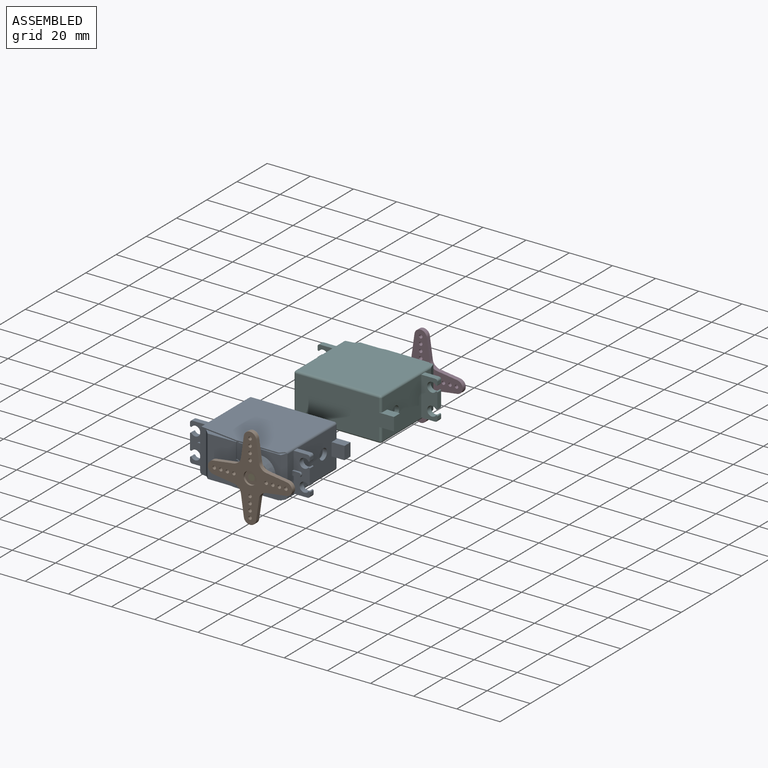
[diagram: assembled view]
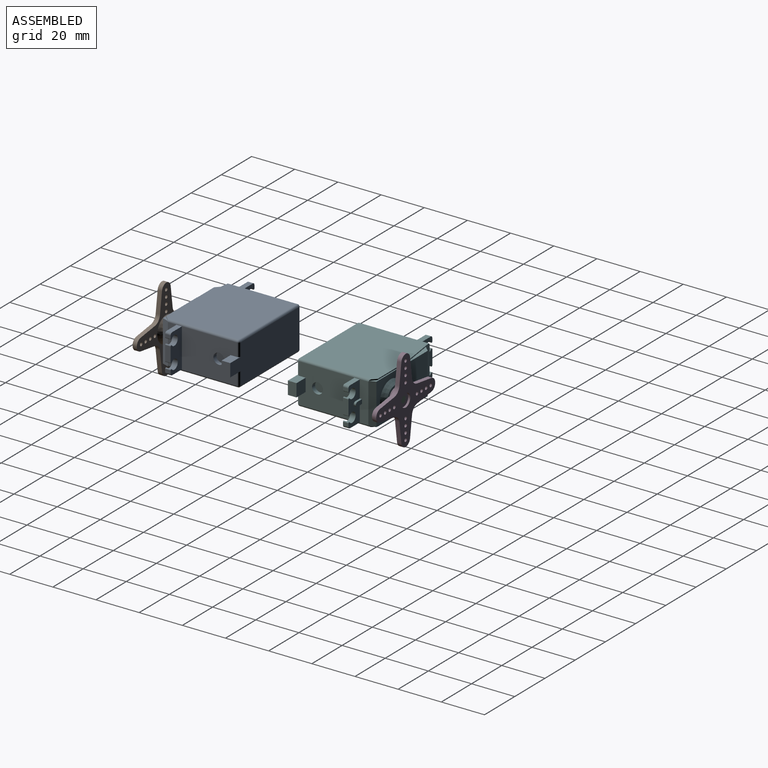
[diagram: assembled view, second angle]
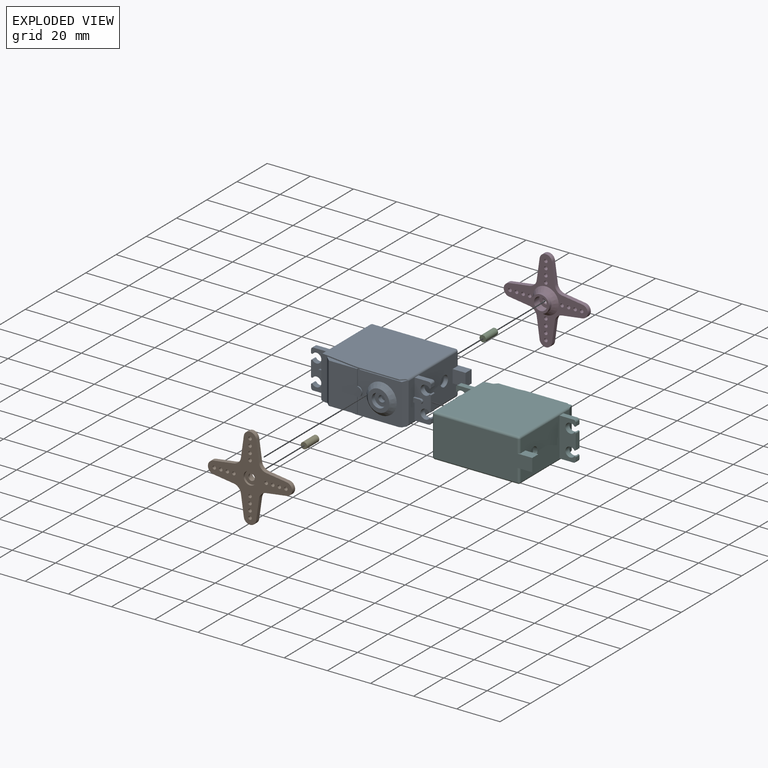
[diagram: exploded view]
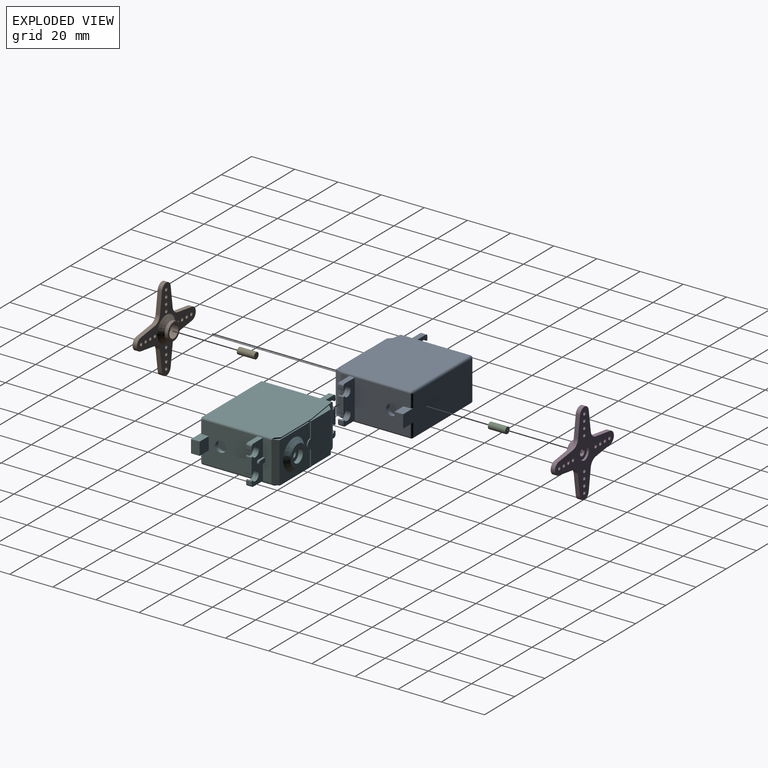
[diagram: exploded view, second angle]
ASSEMBLY  parts=6 mates=4
PART A: 88 faces, bbox 55.5x20x38.1 mm
  f0: plane 18x4mm, normal (-1,0,0), area 70mm2, adj f7,f10,f39,f40,f42,f74,f77
  f1: plane 25.6x18mm, normal (1,0,0), area 423.2mm2, adj f20,f65,f67,f68,f69,f71,f72,f80
  f2: plane 7.34x0.5mm, normal (1,0,0), area 3.7mm2, adj f3,f50,f52,f58
  f3: plane 20x19.9mm, normal (0,0,1), area 41mm2, adj f2,f4,f6,f7,f8,f11,f47,f49
  f4: plane 6.5x0.5mm, normal (-1,0,0), area 3.3mm2, adj f3,f5,f56,f57
  f5: plane 19.8x19mm, normal (0,0,1), area 212.8mm2, adj f4,f53,f54,f55,f56,f57,f62
  f6: plane 2.37x2.37mm, normal (0.71,0,0.71), area 1.5mm2, adj f3,f8,f56,f71
  f7: plane 20x18.1mm, normal (-0.14,0,0.99), area 75.4mm2, adj f0,f3,f8,f11,f48,f51,f52,f74
  f8: plane 38.5x34.6mm, normal (0,-1,0), area 1310.8mm2, adj f3,f6,f7,f71,f74,f75
  f9: plane 18x4mm, normal (1,0,0), area 70mm2, adj f15,f44,f45,f46,f54,f71,f80
  f10: plane 18x7.5mm, normal (0,0,1), area 93.3mm2, adj f0,f16,f17,f18,f23,f24,f25,f26
  f11: plane 38.5x34.6mm, normal (0,1,0), area 1310.8mm2, adj f3,f7,f47,f77,f80,f81
  f12: plane 6.8x2.5mm, normal (1,0,0), area 17mm2, adj f15,f20,f30,f34
  f13: plane 2.5x1.4mm, normal (1,0,0), area 3.5mm2, adj f15,f20,f32,f87
  f14: plane 2.5x1.4mm, normal (1,0,0), area 3.5mm2, adj f15,f20,f31,f86
  f15: plane 18x7.5mm, normal (0,0,1), area 93.3mm2, adj f9,f12,f13,f14,f29,f30,f31,f32
  f16: plane 2.5x1.4mm, normal (-1,0,0), area 3.5mm2, adj f10,f22,f25,f85
  f17: plane 2.5x1.4mm, normal (-1,0,0), area 3.5mm2, adj f10,f22,f26,f84
  f18: plane 6.8x2.5mm, normal (-1,0,0), area 17mm2, adj f10,f22,f23,f28
  f19: plane 45.5x18mm, normal (0,0,-1), area 735mm2, adj f67,f69,f70,f72,f75,f78,f81,f83
  f20: plane 18x7.5mm, normal (0,0,-1), area 100.9mm2, adj f1,f12,f13,f14,f29,f30,f31,f32
  f21: plane 25.6x18mm, normal (-1,0,0), area 460.8mm2, adj f22,f74,f77,f78
  f22: plane 18x7.5mm, normal (0,0,-1), area 100.9mm2, adj f16,f17,f18,f21,f23,f24,f25,f26
  f23: cylinder r=0.39mm len=2.5mm, axis (0,0,1), area 2.5mm2, adj f10,f18,f22,f24
  f24: cylinder r=2.25mm len=4.5mm, axis (0,0,1), area 28mm2, adj f10,f22,f23,f25
  f25: cylinder r=0.39mm len=2.5mm, axis (0,0,1), area 2.5mm2, adj f10,f16,f22,f24
  f26: cylinder r=0.39mm len=2.5mm, axis (0,0,1), area 2.5mm2, adj f10,f17,f22,f27
  f27: cylinder r=2.25mm len=4.5mm, axis (0,0,1), area 28mm2, adj f10,f22,f26,f28
  f28: cylinder r=0.39mm len=2.5mm, axis (0,0,1), area 2.5mm2, adj f10,f18,f22,f27
  f29: cylinder r=2.25mm len=4.5mm, axis (0,0,1), area 28mm2, adj f15,f20,f30,f31
  f30: cylinder r=0.39mm len=2.5mm, axis (0,0,1), area 2.5mm2, adj f12,f15,f20,f29
  f31: cylinder r=0.39mm len=2.5mm, axis (0,0,1), area 2.5mm2, adj f14,f15,f20,f29
  f32: cylinder r=0.39mm len=2.5mm, axis (0,0,1), area 2.5mm2, adj f13,f15,f20,f33
  f33: cylinder r=2.25mm len=4.5mm, axis (0,0,1), area 28mm2, adj f15,f20,f32,f34
  f34: cylinder r=0.39mm len=2.5mm, axis (0,0,1), area 2.5mm2, adj f12,f15,f20,f33
  f35: plane 6.5x2.5mm, normal (0,1,0), area 16.3mm2, adj f15,f20,f80,f87
  f36: plane 6.5x2.5mm, normal (0,1,0), area 16.2mm2, adj f10,f22,f77,f85
  f37: plane 6.5x2.5mm, normal (0,-1,0), area 16.3mm2, adj f10,f22,f74,f84
  f38: plane 6.5x2.5mm, normal (0,-1,0), area 16.3mm2, adj f15,f20,f71,f86
  f39: plane 3x1mm, normal (0,-1,0), area 3mm2, adj f0,f10,f41,f42
  f40: plane 3x1mm, normal (0,1,0), area 3mm2, adj f0,f10,f41,f42
  f41: cylinder r=1mm len=2mm, axis (0,0,-1), area 3.1mm2, adj f10,f39,f40,f42
  f42: plane 4x2mm, normal (0,0,1), area 7.6mm2, adj f0,f39,f40,f41
  f43: cylinder r=1mm len=2mm, axis (0,0,-1), area 3.1mm2, adj f15,f44,f45,f46
  f44: plane 3x1mm, normal (0,1,0), area 3mm2, adj f9,f15,f43,f46
  f45: plane 3x1mm, normal (0,-1,0), area 3mm2, adj f9,f15,f43,f46
  f46: plane 4x2mm, normal (0,0,1), area 7.6mm2, adj f9,f43,f44,f45
  f47: plane 2.37x2.37mm, normal (0.71,0,0.71), area 1.5mm2, adj f3,f11,f55,f80
  f48: plane 19x2.59mm, normal (-0.71,0,0.71), area 69.5mm2, adj f7,f50,f51,f52
  f49: plane 7.34x0.5mm, normal (1,0,0), area 3.7mm2, adj f3,f50,f51,f58
  f50: plane 19x15.28mm, normal (0,0,1), area 256.5mm2, adj f2,f48,f49,f51,f52,f58
  f51: plane 15.7x2.59mm, normal (0,1,0), area 20.3mm2, adj f3,f7,f48,f49,f50
  f52: plane 15.7x2.59mm, normal (0,-1,0), area 20.3mm2, adj f2,f3,f7,f48,f50
  f53: plane 6.5x0.5mm, normal (-1,0,0), area 3.3mm2, adj f3,f5,f55,f57
  f54: plane 19x3mm, normal (0.95,0,0.32), area 59.9mm2, adj f5,f9,f55,f56,f71,f80
  f55: plane 20.67x2.87mm, normal (0,1,0), area 12mm2, adj f3,f5,f47,f53,f54,f80
  f56: plane 20.67x2.87mm, normal (0,-1,0), area 12mm2, adj f3,f4,f5,f6,f54,f71
  f57: cylinder r=3.16mm len=6mm, axis (0,0,1), area 3.9mm2, adj f3,f4,f5,f53
  f58: cylinder r=2.16mm len=4.32mm, axis (0,0,-1), area 3.4mm2, adj f2,f3,f49,f50
  f59: cylinder r=3.2mm len=6.4mm, axis (0,0,-1), area 40.2mm2, adj f60,f61
  f60: plane 10x10mm, normal (0,0,1), area 46.4mm2, adj f59,f62
  f61: plane 6.4x6.4mm, normal (0,0,1), area 25.1mm2, adj f59,f63
  f62: cone r=5mm half-angle=45deg, axis (0,0,-1), area 106.6mm2, adj f5,f60
  f63: cylinder r=1.5mm len=3mm, axis (0,0,1), area 18.8mm2, adj f61,f64
  f64: plane 3x3mm, normal (0,0,1), area 7.1mm2, adj f63
  f65: cylinder r=2.5mm len=5mm, axis (1,0,0), area 31.4mm2, adj f1,f66
  f66: plane 5x5mm, normal (1,0,0), area 19.6mm2, adj f65
  f67: plane 7x4mm, normal (0,1,0), area 24.2mm2, adj f1,f19,f68,f70,f83
  f68: plane 6x6mm, normal (0,0,1), area 36mm2, adj f1,f67,f69,f70
  f69: plane 7x4mm, normal (0,-1,0), area 24.2mm2, adj f1,f19,f68,f70,f72
  f70: plane 6x4mm, normal (1,0,0), area 24mm2, adj f19,f67,f68,f69
  f71: cylinder r=1mm len=33.1mm, axis (0,0,-1), area 51mm2, adj f1,f6,f8,f9,f38,f54,f56,f73
  f72: cylinder r=1mm len=6mm, axis (0,1,0), area 9.4mm2, adj f1,f19,f69,f73
  f73: sphere r=1mm, area 1.6mm2, adj f71,f72,f75
  f74: cylinder r=1mm len=32.24mm, axis (0,0,1), area 50.5mm2, adj f0,f7,f8,f21,f37,f76
  f75: cylinder r=1mm len=38.5mm, axis (-1,0,0), area 60.5mm2, adj f8,f19,f73,f76
  f76: sphere r=1mm, area 1.6mm2, adj f74,f75,f78
  f77: cylinder r=1mm len=32.24mm, axis (0,0,-1), area 50.5mm2, adj f0,f7,f11,f21,f36,f79
  f78: cylinder r=1mm len=18mm, axis (0,-1,0), area 28.3mm2, adj f19,f21,f76,f79
  f79: sphere r=1mm, area 1.6mm2, adj f77,f78,f81
  f80: cylinder r=1mm len=33.1mm, axis (0,0,1), area 51mm2, adj f1,f9,f11,f35,f47,f54,f55,f82
  f81: cylinder r=1mm len=38.5mm, axis (1,0,0), area 60.5mm2, adj f11,f19,f79,f82
  f82: sphere r=1mm, area 1.6mm2, adj f80,f81,f83
  f83: cylinder r=1mm len=6mm, axis (0,1,0), area 9.4mm2, adj f1,f19,f67,f82
  f84: cylinder r=1mm len=2.5mm, axis (0,0,-1), area 3.9mm2, adj f10,f17,f22,f37
  f85: cylinder r=1mm len=2.5mm, axis (0,0,-1), area 3.9mm2, adj f10,f16,f22,f36
  f86: cylinder r=1mm len=2.5mm, axis (0,0,-1), area 3.9mm2, adj f14,f15,f20,f38
  f87: cylinder r=1mm len=2.5mm, axis (0,0,-1), area 3.9mm2, adj f13,f15,f20,f35
PART B: 42 faces, bbox 39x39x5.5 mm
  f0: cylinder r=1.5mm len=3mm, axis (0,0,-1), area 9.4mm2, adj f1,f41
  f1: plane 6x6mm, normal (0,0,-1), area 21.2mm2, adj f0,f36
  f2: cylinder r=3.87mm len=3.3mm, axis (0,0,-1), area 10mm2, adj f3,f32,f34,f35
  f3: plane 9.5x2mm, normal (-0.14,0.99,0), area 19.2mm2, adj f2,f4,f34,f35
  f4: cylinder r=2.9mm len=5.74mm, axis (0,0,-1), area 16.6mm2, adj f3,f5,f34,f35
  f5: plane 9.5x2mm, normal (-0.14,-0.99,0), area 19.2mm2, adj f4,f6,f34,f35
  f6: cylinder r=3.87mm len=3.3mm, axis (0,0,-1), area 10mm2, adj f5,f7,f34,f35
  f7: plane 9.5x2mm, normal (-0.99,-0.14,0), area 19.2mm2, adj f6,f8,f34,f35
  f8: cylinder r=2.9mm len=5.74mm, axis (0,0,-1), area 16.6mm2, adj f7,f9,f34,f35
  f9: plane 9.5x2mm, normal (0.99,-0.14,0), area 19.2mm2, adj f8,f10,f34,f35
  f10: cylinder r=3.87mm len=3.3mm, axis (0,0,-1), area 10mm2, adj f9,f11,f34,f35
  f11: plane 9.5x2mm, normal (0.14,-0.99,0), area 19.2mm2, adj f10,f12,f34,f35
  f12: cylinder r=2.9mm len=5.74mm, axis (0,0,-1), area 16.6mm2, adj f11,f13,f34,f35
  f13: plane 9.5x2mm, normal (0.14,0.99,0), area 19.2mm2, adj f12,f14,f34,f35
  f14: cylinder r=3.87mm len=3.3mm, axis (0,0,-1), area 10mm2, adj f13,f15,f34,f35
  f15: plane 9.5x2mm, normal (0.99,0.14,0), area 19.2mm2, adj f14,f16,f34,f35
  f16: cylinder r=2.9mm len=5.74mm, axis (0,0,-1), area 16.6mm2, adj f15,f32,f34,f35
  f17: cylinder r=0.8mm len=2mm, axis (0,0,-1), area 10.1mm2, adj f34,f35
  f18: cylinder r=0.8mm len=2mm, axis (0,0,-1), area 10.1mm2, adj f34,f35
  f19: cylinder r=0.8mm len=2mm, axis (0,0,-1), area 10.1mm2, adj f34,f35
  f20: cylinder r=0.8mm len=2mm, axis (0,0,-1), area 10.1mm2, adj f34,f35
  f21: cylinder r=0.8mm len=2mm, axis (0,0,-1), area 10.1mm2, adj f34,f35
  f22: cylinder r=0.8mm len=2mm, axis (0,0,-1), area 10.1mm2, adj f34,f35
  f23: cylinder r=0.8mm len=2mm, axis (0,0,-1), area 10.1mm2, adj f34,f35
  f24: cylinder r=0.8mm len=2mm, axis (0,0,-1), area 10.1mm2, adj f34,f35
  f25: cylinder r=0.8mm len=2mm, axis (0,0,-1), area 10.1mm2, adj f34,f35
  f26: cylinder r=0.8mm len=2mm, axis (0,0,-1), area 10.1mm2, adj f34,f35
  f27: cylinder r=0.8mm len=2mm, axis (0,0,-1), area 10.1mm2, adj f34,f35
  f28: cylinder r=0.8mm len=2mm, axis (0,0,-1), area 10.1mm2, adj f34,f35
  f29: cylinder r=0.8mm len=2mm, axis (0,0,-1), area 10.1mm2, adj f34,f35
  f30: cylinder r=0.8mm len=2mm, axis (0,0,-1), area 10.1mm2, adj f34,f35
  f31: cylinder r=0.8mm len=2mm, axis (0,0,-1), area 10.1mm2, adj f34,f35
  f32: plane 9.5x2mm, normal (-0.99,0.14,0), area 19.2mm2, adj f2,f16,f34,f35
  f33: cylinder r=0.8mm len=2mm, axis (0,0,-1), area 10.1mm2, adj f34,f35
  f34: plane 39x39mm, normal (0,0,1), area 445.2mm2, adj f2,f3,f4,f5,f6,f7,f8,f9
  f35: plane 39x39mm, normal (0,0,-1), area 360.3mm2, adj f2,f3,f4,f5,f6,f7,f8,f9
  f36: cylinder r=3mm len=6mm, axis (0,0,1), area 66mm2, adj f1,f38
  f37: cylinder r=4mm len=8mm, axis (0,0,1), area 37.7mm2, adj f38,f39
  f38: plane 8x8mm, normal (0,0,-1), area 22mm2, adj f36,f37
  f39: cone r=4mm half-angle=45deg, axis (0,0,1), area 88.9mm2, adj f35,f37
  f40: cylinder r=3mm len=6mm, axis (0,0,1), area 18.8mm2, adj f34,f41
  f41: plane 6x6mm, normal (0,0,1), area 21.2mm2, adj f0,f40
PART C: 3 faces, bbox 3x3x8 mm
  f0: cylinder r=1.5mm len=8mm, axis (0,0,-1), area 75.4mm2, adj f1,f2
  f1: plane 3x3mm, normal (0,0,1), area 7.1mm2, adj f0
  f2: plane 3x3mm, normal (0,0,-1), area 7.1mm2, adj f0
PART D: same geometry as B
PART E: same geometry as C
PART F: same geometry as A
PLACE A rot(axis=(1,0,0),90deg) t=(33.23,-30.01,-39.77)mm
PLACE B rot(axis=(0.58,0.58,-0.58),120deg) t=(63.33,-71.11,-49.77)mm
PLACE C rot(axis=(1,0,0),90deg) t=(64.27,39.47,-49.41)mm
PLACE D rot(axis=(-0.58,-0.58,-0.58),120deg) t=(64.27,38.47,-49.41)mm
PLACE E rot(axis=(-1,0,0),90deg) t=(63.33,-72.11,-49.77)mm
PLACE F rot(axis=(-1,0,0),90deg) t=(34.17,-2.63,-59.41)mm
MATE fastened A.f59 <-> E.f0  axis (0,-1,0) through (63.33,-64.11,-49.77)mm
MATE revolute D.f0 <-> C.f0  axis (0,1,0) through (64.27,39.47,-49.41)mm
MATE fastened F.f59 <-> C.f0  axis (0,1,0) through (64.27,31.47,-49.41)mm
MATE revolute B.f0 <-> E.f0  axis (0,-1,0) through (63.33,-72.11,-49.77)mm
